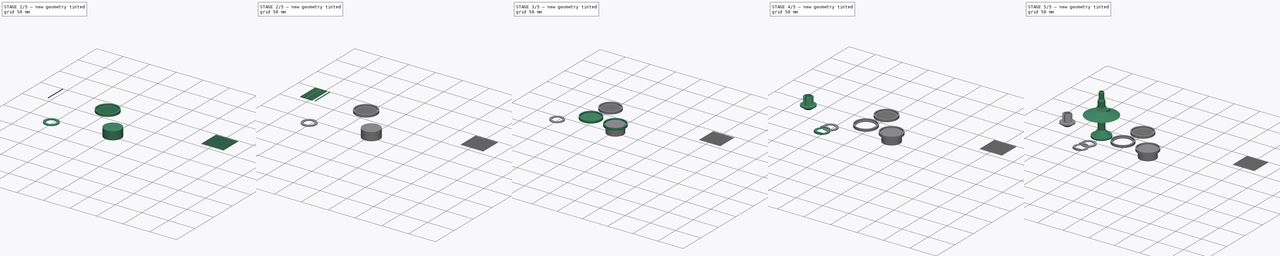
[diagram: build sequence overview — one tinted view per stage of 5, left to right]
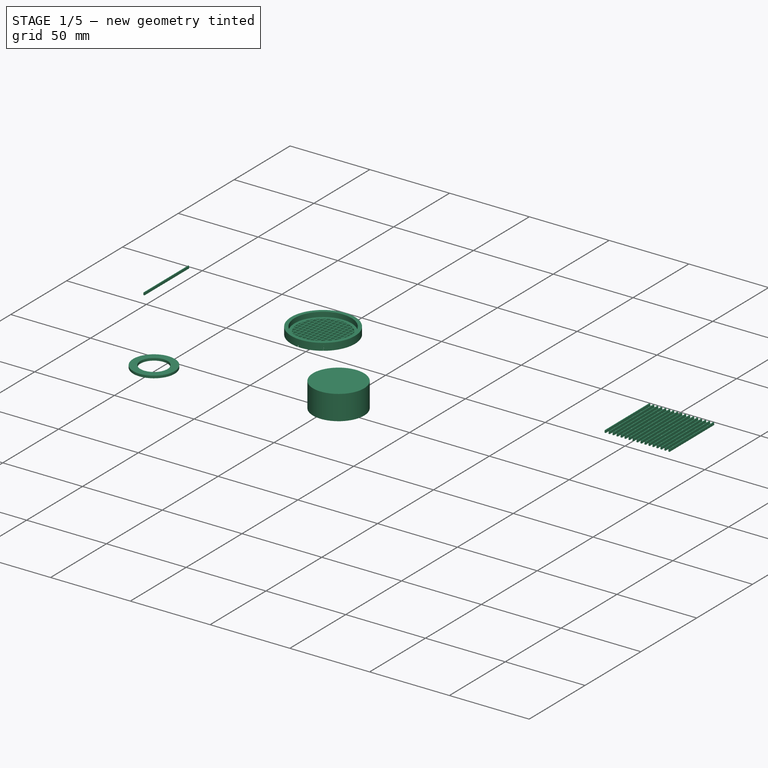
[diagram: stage 1 of 5 — iso view after this stage's code; geometry added in this stage tinted green]
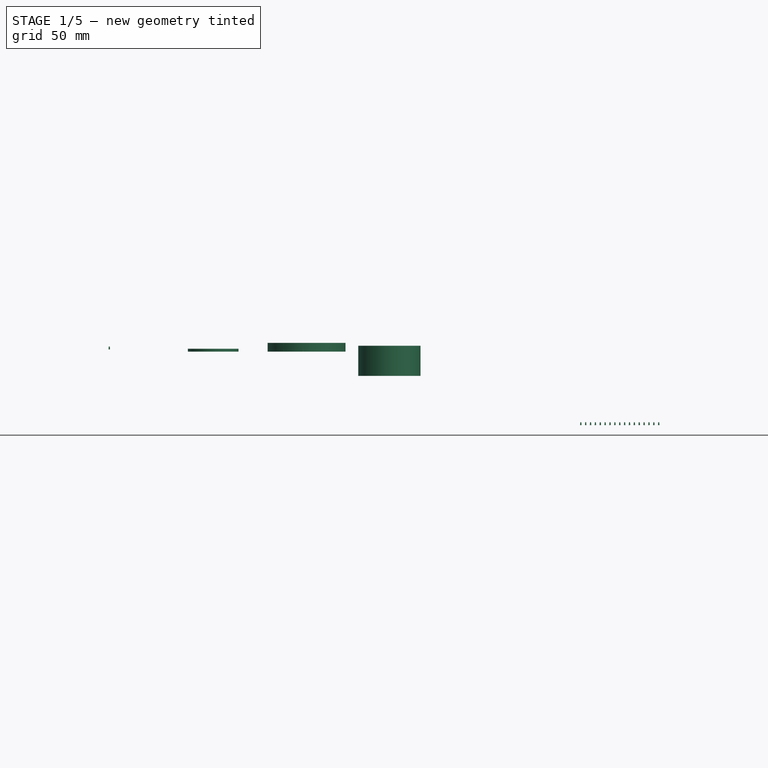
[diagram: stage 1 of 5 — front view after this stage's code; geometry added in this stage tinted green]
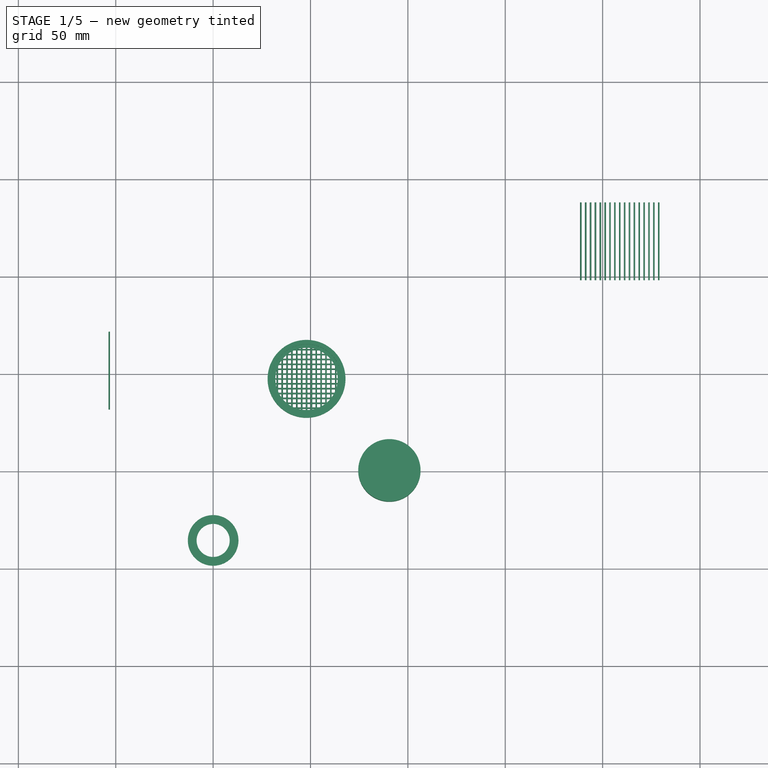
[diagram: stage 1 of 5 — top view after this stage's code; geometry added in this stage tinted green]
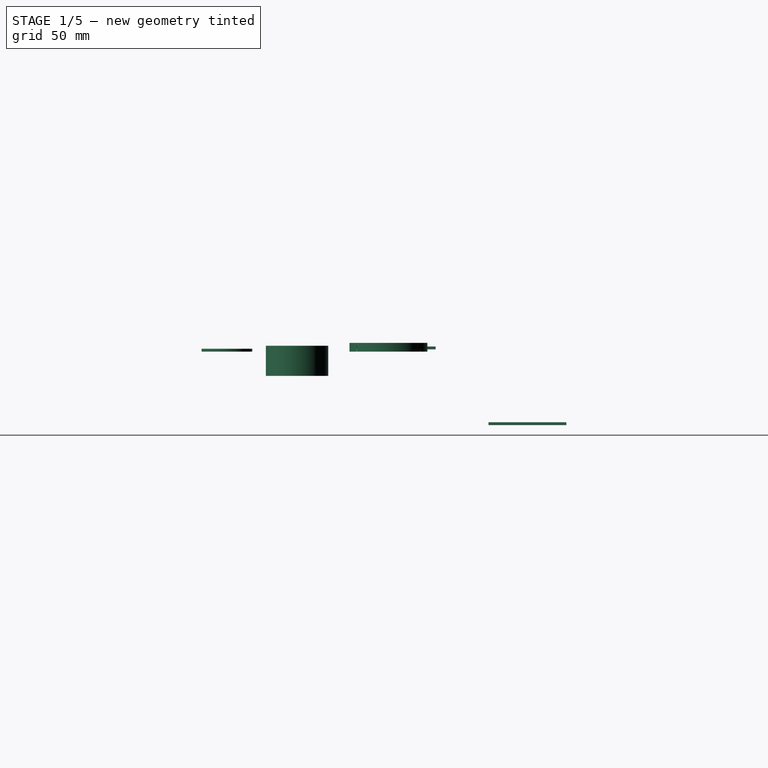
[diagram: stage 1 of 5 — right view after this stage's code; geometry added in this stage tinted green]
FCSTD DOCUMENT  (FreeCAD 0.18.4R)
Label: overflow-8.6_9.2
License: All rights reserved
LicenseURL: http://en.wikipedia.org/wiki/All_rights_reserved
objects: Part::Extrusion×45, Part::Part2DObjectPython×39, Part::Feature×17, Part::Cut×14, Part::MultiFuse×11, Part::Cone×3, Part::FeaturePython×3, Sketcher::SketchObject×2, Part::MultiCommon×2, Part::Helix×1, Part::Box×1, PartDesign::Pad×1, PartDesign::ShapeBinder×1, PartDesign::SubtractivePipe×1, PartDesign::Body×1, Part::Mirroring×1, Part::Cylinder×1, Part::Revolution×1
note: 147 computed .brp shape members not serialized (recipe doc carries the construction recipe); baked Part::Feature solids carry a one-line shape summary decoded from their .brp

FEATURE [Part::Extrusion] Extrusion090
  Base = -> Wire004
  Dir = (-1.881e-13,40,-6.22e-14)
  DirMode = 0
  FaceMakerClass = Part::FaceMakerBullseye
  LengthFwd = 0
  LengthRev = 0
  Placement = pos=(-13.9657,23.1669,27.0763) rot=(0,0,1;0rad)
  Solid = true
  Symmetric = false
FEATURE [Part::Feature] Face002
  Placement = pos=(3,18,0) rot=(0,0,1;0rad)
  shape: bbox 26 x 26 x 2e-07 mm, 1 faces, 0 solids (baked)
FEATURE [Part::Extrusion] Extrusion091
  Base = -> Face002
  Dir = (0,0,-1)
  DirMode = 0
  FaceMakerClass = Part::FaceMakerBullseye
  LengthFwd = 0
  LengthRev = 0
  Solid = true
  Symmetric = false
FEATURE [Part::Feature] Face003
  Placement = pos=(3,18,0) rot=(0,0,1;0rad)
  shape: bbox 26 x 26 x 2e-07 mm, 1 faces, 0 solids (baked)
FEATURE [Part::Feature] Face004
  Placement = pos=(3,18,0) rot=(0,0,1;0rad)
  shape: bbox 26 x 26 x 2e-07 mm, 1 faces, 0 solids (baked)
FEATURE [Part::Extrusion] Extrusion092
  Base = -> Face004
  Dir = (0,0,0.5)
  DirMode = 0
  FaceMakerClass = Part::FaceMakerBullseye
  LengthFwd = 0
  LengthRev = 0
  Solid = true
  Symmetric = false
FEATURE [Part::MultiFuse] Fusion010013002001002004002
  Shapes = -> [Extrusion091,Extrusion092]
FEATURE [Part::Feature] Fusion010013002001002004002001  label="Fusion010013002001002004003"
  shape: bbox 26 x 26 x 1.5 mm, 4 faces (baked)
FEATURE [Part::Feature] Fusion010013002001002004001  label="Fusion010013002001002005"
  shape: bbox 40 x 40 x 4.5 mm, 97 faces (baked)
FEATURE [Part::Part2DObjectPython] Circle009  # Draft 2D object (typed FeaturePython)
  FirstAngle = 0
  LastAngle = 0
  MakeFace = true
  Placement = pos=(90.4955,-1.09e-14,-34.7308) rot=(0,0,1;0rad)
  Radius = 16
  Support = -> [Fusion010013002001002004001]
FEATURE [Part::Extrusion] Extrusion093
  Base = -> Circle009
  Dir = (0,0,-15.4511)
  DirMode = 0
  FaceMakerClass = Part::FaceMakerBullseye
  LengthFwd = 0
  LengthRev = 0
  Solid = true
  Symmetric = false
FEATURE [Part::Part2DObjectPython] Wire005  # Draft 2D object (typed FeaturePython)
  ChamferSize = 0
  Closed = true
  End = (90.8955,15.995,-37.7308)
  FilletRadius = 0
  Length = 4.31497
  MakeFace = true
  Placement = pos=(90.7455,15.998,-36.2308) rot=(0.57735,0.57735,0.57735;2.0944rad)
  Points = (4) [(0,0,0),(-1.77636e-14,0,-0.5),(-0.00304754,-1.5,-0.65),(-0.00304754,-1.5,0.15)]
  Start = (90.7455,15.998,-36.2308)
  Subdivisions = 0
FEATURE [Part::Part2DObjectPython] Line012  # Draft 2D object (typed FeaturePython)
  ChamferSize = 0
  Closed = false
  End = (89.2955,15.995,-37.7308)
  FilletRadius = 0
  Length = 0.8
  MakeFace = true
  Placement = pos=(90.0955,15.995,-37.7308) rot=(1,0,0;3.14159rad)
  Points = (2) [(0,0,0),(-0.8,0,0)]
  Start = (90.0955,15.995,-37.7308)
  Subdivisions = 0
FEATURE [Part::Part2DObjectPython] Line013  # Draft 2D object (typed FeaturePython)
  ChamferSize = 0
  Closed = false
  End = (90.8955,15.995,-37.7308)
  FilletRadius = 0
  Length = 0.8
  MakeFace = true
  Placement = pos=(90.0955,15.995,-37.7308) rot=(1,0,0;3.14159rad)
  Points = (2) [(0,0,0),(0.8,0,0)]
  Start = (90.0955,15.995,-37.7308)
  Subdivisions = 0
FEATURE [Part::Part2DObjectPython] Line014  # Draft 2D object (typed FeaturePython)
  ChamferSize = 0
  Closed = false
  End = (90.4955,15.995,-36.2308)
  FilletRadius = 0
  Length = 1.5
  MakeFace = true
  Placement = pos=(90.4955,15.995,-37.7308) rot=(0,0.707107,-0.707107;3.14159rad)
  Points = (2) [(0,0,0),(0,-1.5,0)]
  Start = (90.4955,15.995,-37.7308)
  Subdivisions = 0
FEATURE [Part::Part2DObjectPython] Line015  # Draft 2D object (typed FeaturePython)
  ChamferSize = 0
  Closed = false
  End = (90.7455,15.995,-36.2308)
  FilletRadius = 0
  Length = 0.5
  MakeFace = true
  Placement = pos=(90.2455,15.995,-36.2308) rot=(0,0.707107,-0.707107;3.14159rad)
  Points = (2) [(0,0,0),(-0.5,-2.84217e-14,-1.77636e-15)]
  Start = (90.2455,15.995,-36.2308)
  Subdivisions = 0
FEATURE [Part::Part2DObjectPython] Wire006  # Draft 2D object (typed FeaturePython)
  ChamferSize = 0
  Closed = true
  End = (90.7455,15.995,-36.2308)
  FilletRadius = 0
  Length = 4.31496
  MakeFace = true
  Placement = pos=(90.2455,15.995,-36.2308) rot=(0,0.707107,-0.707107;3.14159rad)
  Points = (4) [(0,0,0),(0.15,1.5,-1.77636e-15),(-0.65,1.5,1.77636e-15),(-0.5,-4.26326e-14,-1.77636e-15)]
  Start = (90.2455,15.995,-36.2308)
  Subdivisions = 0
FEATURE [Part::Extrusion] Extrusion094
  Base = -> Wire006
  Dir = (-5.56e-14,40,-1.48e-14)
  DirMode = 0
  FaceMakerClass = Part::FaceMakerBullseye
  LengthFwd = 0
  LengthRev = 0
  Placement = pos=(47.4024,26.2758,-4.26e-14) rot=(0,0,1;0rad)
  Solid = true
  Symmetric = false
FEATURE [Part::Feature] Fusion010013002001002004002003002001  label="Fusion010013002001002004002003003"
  Placement = pos=(-110.612,46.9289,-6.39e-14) rot=(0,0,1;0rad)
  shape: bbox 40.15 x 40.15 x 4.646 mm, 1489 faces (baked)
FEATURE [Part::Part2DObjectPython] Circle010  # Draft 2D object (typed FeaturePython)
  FirstAngle = 0
  LastAngle = 0
  MakeFace = true
  Placement = pos=(47.9585,46.9289,-36.2308) rot=(0,0,1;0rad)
  Radius = 16
  Support = -> [Fusion010013002001002004002003002001]
FEATURE [Part::Extrusion] Extrusion095
  Base = -> Circle010
  Dir = (0,0,-90.6299)
  DirMode = 0
  FaceMakerClass = Part::FaceMakerBullseye
  LengthFwd = 0
  LengthRev = 0
  Solid = true
  Symmetric = false
FEATURE [Part::Cut] Cut001004012004
  Base = -> Fusion010013002001002004002003002001
  Tool = -> Extrusion095
FEATURE [Part::Feature] Cut001004012004001  label="Cut001004012005"
  shape: bbox 40.15 x 40.15 x 4.646 mm, 6 faces (baked)
FEATURE [Part::Part2DObjectPython] Line016  # Draft 2D object (typed FeaturePython)
  ChamferSize = 0
  Closed = false
  End = (98.2979,82.2708,-37.7308)
  FilletRadius = 0
  Length = 40
  MakeFace = true
  Placement = pos=(138.298,82.2708,-37.7308) rot=(0.707107,0.707107,0;3.14159rad)
  Points = (2) [(0,0,0),(2.84217e-14,-40,4.9738e-14)]
  Start = (138.298,82.2708,-37.7308)
  Subdivisions = 0
FEATURE [Part::FeaturePython] PathArray  # WARN: FeaturePython — macro-defined, semantics opaque (R4)
  Align = false
  Base = -> Extrusion094
  Count = 17
  PathObj = -> Line016
  PathSubs = -> [Line016]
  Xlate = (0,0,0)
FEATURE [Part::Part2DObjectPython] Line017  # Draft 2D object (typed FeaturePython)
  ChamferSize = 0
  Closed = false
  End = (229.193,138.266,-75.4615)
  FilletRadius = 0
  Length = 57.137
  MakeFace = true
  Placement = pos=(188.393,98.2658,-75.4615) rot=(0.707107,0.707107,0;3.14159rad)
  Points = (2) [(0,0,0),(40,40.8,3.12639e-13)]
  Start = (188.393,98.2658,-75.4615)
  Subdivisions = 0
FEATURE [Part::Part2DObjectPython] Line018  # Draft 2D object (typed FeaturePython)
  ChamferSize = 0
  Closed = false
  End = (188.393,138.266,-75.4615)
  FilletRadius = 0
  Length = 57.137
  MakeFace = true
  Placement = pos=(229.193,98.2658,-75.4615) rot=(0.707107,0.707107,0;3.14159rad)
  Points = (2) [(0,0,0),(40,-40.8,1.42109e-13)]
  Start = (229.193,98.2658,-75.4615)
  Subdivisions = 0
FEATURE [Part::Part2DObjectPython] Wire007  # Draft 2D object (typed FeaturePython)
  ChamferSize = 0
  Closed = true
  End = (90.7455,15.995,-36.2308)
  FilletRadius = 0
  Length = 4.31496
  MakeFace = true
  Placement = pos=(90.2455,15.995,-36.2308) rot=(0,0.707107,-0.707107;3.14159rad)
  Points = (4) [(0,0,0),(0.15,1.5,-1.77636e-15),(-0.65,1.5,1.77636e-15),(-0.5,-4.9738e-14,-1.77636e-15)]
  Start = (90.2455,15.995,-36.2308)
  Subdivisions = 0
FEATURE [Part::Extrusion] Extrusion096
  Base = -> Wire007
  Dir = (-5.56e-14,40,-1.48e-14)
  DirMode = 0
  FaceMakerClass = Part::FaceMakerBullseye
  LengthFwd = 0
  LengthRev = 0
  Placement = pos=(47.4024,26.2758,-4.3e-14) rot=(0,0,1;0rad)
  Solid = true
  Symmetric = false
FEATURE [Part::Part2DObjectPython] Line019  # Draft 2D object (typed FeaturePython)
  ChamferSize = 0
  Closed = false
  End = (98.2979,82.2708,-37.7308)
  FilletRadius = 0
  Length = 40
  MakeFace = true
  Placement = pos=(138.298,82.2708,-37.7308) rot=(0.707107,0.707107,0;3.14159rad)
  Points = (2) [(0,0,0),(2.84217e-14,-40,4.9738e-14)]
  Start = (138.298,82.2708,-37.7308)
  Subdivisions = 0
FEATURE [Part::FeaturePython] PathArray001  # WARN: FeaturePython — macro-defined, semantics opaque (R4)
  Align = false
  Base = -> Extrusion096
  Count = 17
  PathObj = -> Line019
  PathSubs = -> [Line019]
  Xlate = (0,0,0)
FEATURE [Part::Part2DObjectPython] Wire008  # Draft 2D object (typed FeaturePython)
  ChamferSize = 0
  Closed = true
  End = (90.7455,15.995,-36.2308)
  FilletRadius = 0
  Length = 4.31496
  MakeFace = true
  Placement = pos=(90.2455,15.995,-36.2308) rot=(0,0.707107,-0.707107;3.14159rad)
  Points = (4) [(0,0,0),(0.15,1.5,-1.77636e-15),(-0.65,1.5,1.77636e-15),(-0.5,-4.9738e-14,-1.77636e-15)]
  Start = (90.2455,15.995,-36.2308)
  Subdivisions = 0
FEATURE [Part::Extrusion] Extrusion097
  Base = -> Wire008
  Dir = (-5.56e-14,40,-1.48e-14)
  DirMode = 0
  FaceMakerClass = Part::FaceMakerBullseye
  LengthFwd = 0
  LengthRev = 0
  Placement = pos=(47.4024,26.2758,-4.3e-14) rot=(0,0,1;0rad)
  Solid = true
  Symmetric = false
FEATURE [Part::Part2DObjectPython] Line020  # Draft 2D object (typed FeaturePython)
  ChamferSize = 0
  Closed = false
  End = (98.2979,82.2708,-37.7308)
  FilletRadius = 0
  Length = 40
  MakeFace = true
  Placement = pos=(138.298,82.2708,-37.7308) rot=(0.707107,0.707107,0;3.14159rad)
  Points = (2) [(0,0,0),(2.84217e-14,-40,4.9738e-14)]
  Start = (138.298,82.2708,-37.7308)
  Subdivisions = 0
FEATURE [Part::FeaturePython] PathArray002  # WARN: FeaturePython — macro-defined, semantics opaque (R4)
  Align = false
  Base = -> Extrusion097
  Count = 17
  PathObj = -> Line020
  PathSubs = -> [Line020]
  Placement = pos=(327.059,-90.5276,1.7053e-12) rot=(0,0,1;1.5708rad)
  Xlate = (0,0,0)
FEATURE [Part::MultiFuse] Fusion010013002001002004002003002002
  Placement = pos=(-160.835,-71.3369,37.7308) rot=(0,0,1;0rad)
  Shapes = -> [PathArray,PathArray002]
FEATURE [Part::Part2DObjectPython] Circle011  # Draft 2D object (typed FeaturePython)
  FirstAngle = 0
  LastAngle = 0
  MakeFace = true
  Placement = pos=(47.9585,46.9289,-37.7308) rot=(0.707107,0.707107,0;3.14159rad)
  Radius = 20
  Support = -> [Cut001004012004001]
FEATURE [Part::Extrusion] Extrusion098
  Base = -> Circle011
  Dir = (-5.221e-13,-2.85e-13,46.4018)
  DirMode = 0
  FaceMakerClass = Part::FaceMakerBullseye
  LengthFwd = 0
  LengthRev = 0
  Solid = true
  Symmetric = false
FEATURE [Part::MultiCommon] Common001
  Shapes = -> [Extrusion098,Fusion010013002001002004002003002002]
FEATURE [Part::MultiFuse] Fusion010013002001002004002003002003
  Shapes = -> [Cut001004012004001,Common001]
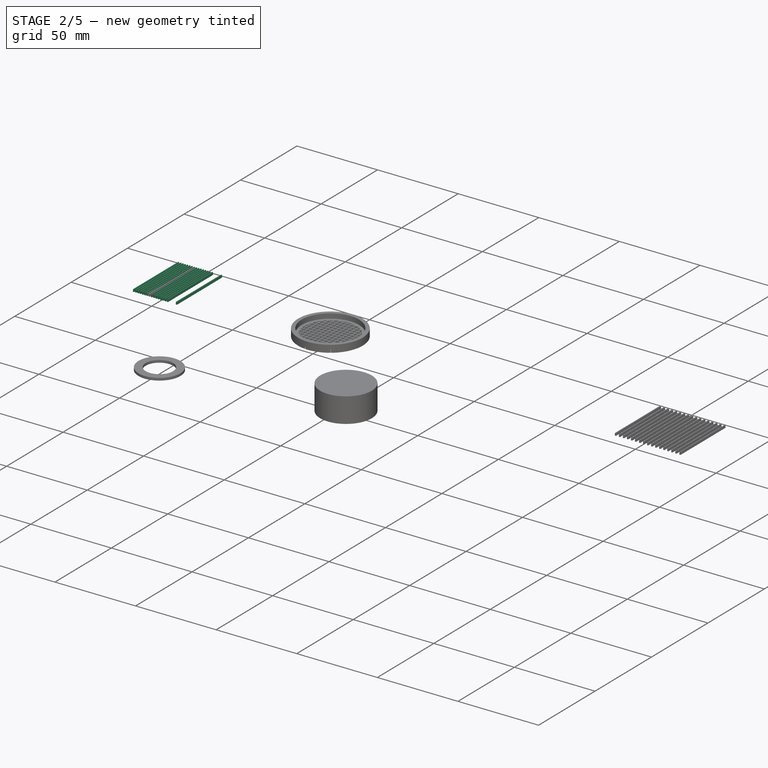
[diagram: stage 2 of 5 — iso view after this stage's code; geometry added in this stage tinted green]
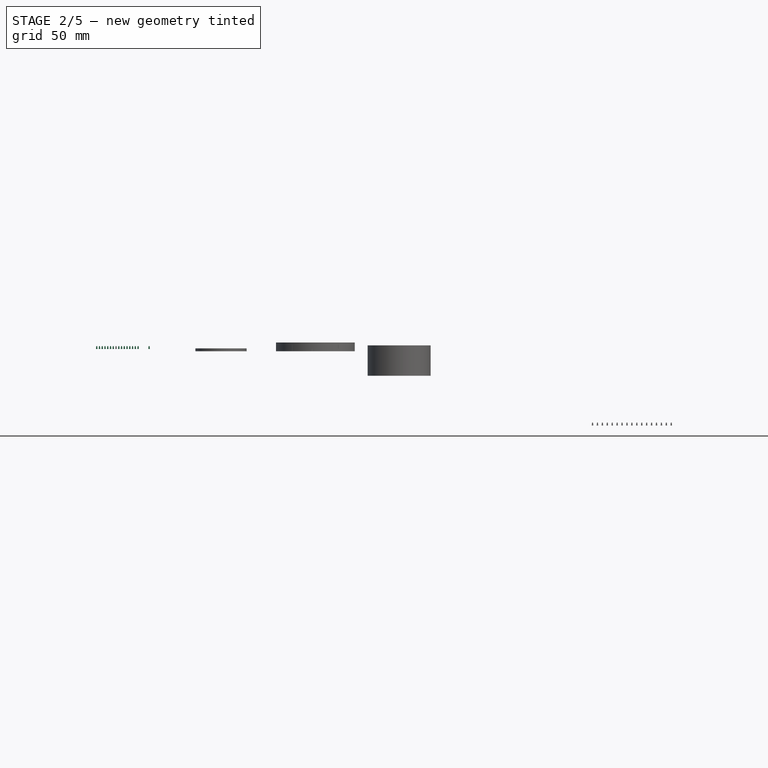
[diagram: stage 2 of 5 — front view after this stage's code; geometry added in this stage tinted green]
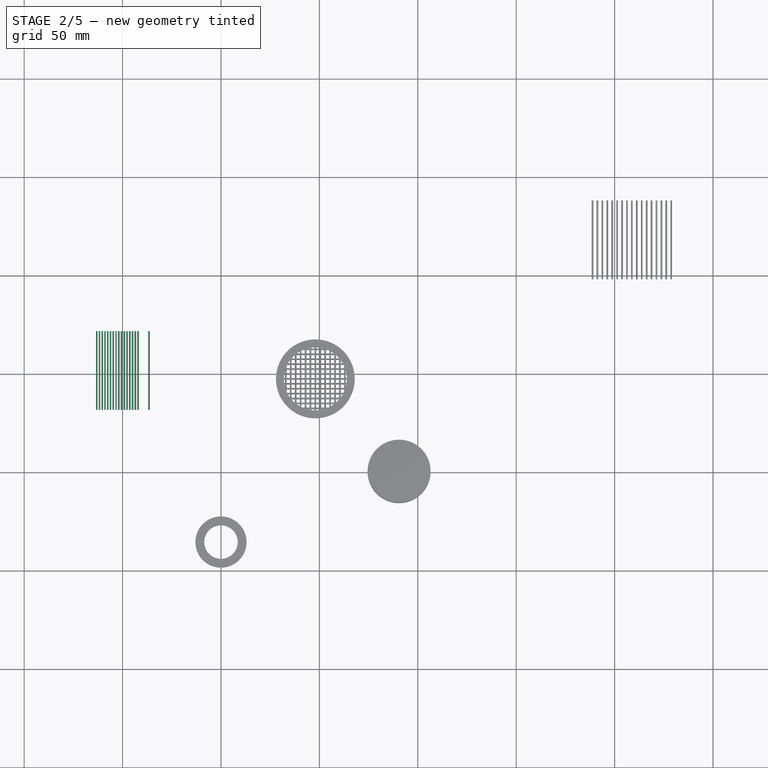
[diagram: stage 2 of 5 — top view after this stage's code; geometry added in this stage tinted green]
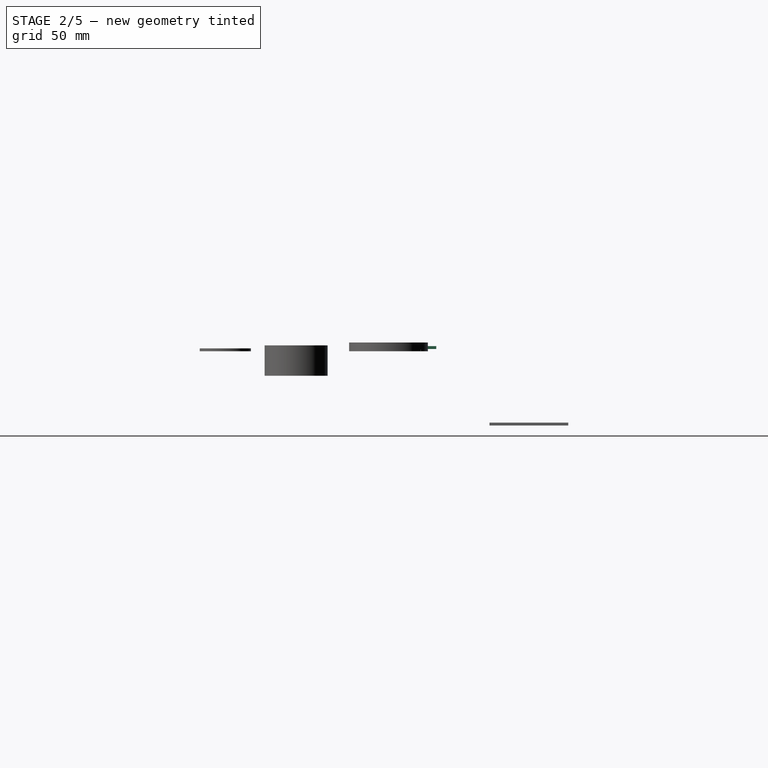
[diagram: stage 2 of 5 — right view after this stage's code; geometry added in this stage tinted green]
FEATURE [Part::Extrusion] Extrusion074
  Base = -> Wire004
  Dir = (-1.881e-13,40,-6.22e-14)
  DirMode = 0
  FaceMakerClass = Part::FaceMakerBullseye
  LengthFwd = 0
  LengthRev = 0
  Placement = pos=(2.83429,23.1669,27.0763) rot=(0,0,1;0rad)
  Solid = true
  Symmetric = false
FEATURE [Part::Extrusion] Extrusion075
  Base = -> Wire004
  Dir = (-1.881e-13,40,-6.22e-14)
  DirMode = 0
  FaceMakerClass = Part::FaceMakerBullseye
  LengthFwd = 0
  LengthRev = 0
  Placement = pos=(-12.5657,23.1669,27.0763) rot=(0,0,1;0rad)
  Solid = true
  Symmetric = false
FEATURE [Part::Extrusion] Extrusion076
  Base = -> Wire004
  Dir = (-1.881e-13,40,-6.22e-14)
  DirMode = 0
  FaceMakerClass = Part::FaceMakerBullseye
  LengthFwd = 0
  LengthRev = 0
  Placement = pos=(-11.1657,23.1669,27.0763) rot=(0,0,1;0rad)
  Solid = true
  Symmetric = false
FEATURE [Part::Extrusion] Extrusion077
  Base = -> Wire004
  Dir = (-1.881e-13,40,-6.22e-14)
  DirMode = 0
  FaceMakerClass = Part::FaceMakerBullseye
  LengthFwd = 0
  LengthRev = 0
  Placement = pos=(-9.76571,23.1669,27.0763) rot=(0,0,1;0rad)
  Solid = true
  Symmetric = false
FEATURE [Part::Extrusion] Extrusion078
  Base = -> Wire004
  Dir = (-1.881e-13,40,-6.22e-14)
  DirMode = 0
  FaceMakerClass = Part::FaceMakerBullseye
  LengthFwd = 0
  LengthRev = 0
  Placement = pos=(-8.36571,23.1669,27.0763) rot=(0,0,1;0rad)
  Solid = true
  Symmetric = false
FEATURE [Part::Extrusion] Extrusion079
  Base = -> Wire004
  Dir = (-1.881e-13,40,-6.22e-14)
  DirMode = 0
  FaceMakerClass = Part::FaceMakerBullseye
  LengthFwd = 0
  LengthRev = 0
  Placement = pos=(-6.96571,23.1669,27.0763) rot=(0,0,1;0rad)
  Solid = true
  Symmetric = false
FEATURE [Part::Extrusion] Extrusion080
  Base = -> Wire004
  Dir = (-1.881e-13,40,-6.22e-14)
  DirMode = 0
  FaceMakerClass = Part::FaceMakerBullseye
  LengthFwd = 0
  LengthRev = 0
  Placement = pos=(-5.56571,23.1669,27.0763) rot=(0,0,1;0rad)
  Solid = true
  Symmetric = false
FEATURE [Part::Extrusion] Extrusion081
  Base = -> Wire004
  Dir = (-1.881e-13,40,-6.22e-14)
  DirMode = 0
  FaceMakerClass = Part::FaceMakerBullseye
  LengthFwd = 0
  LengthRev = 0
  Placement = pos=(-4.16571,23.1669,27.0763) rot=(0,0,1;0rad)
  Solid = true
  Symmetric = false
FEATURE [Part::Extrusion] Extrusion082
  Base = -> Wire004
  Dir = (-1.881e-13,40,-6.22e-14)
  DirMode = 0
  FaceMakerClass = Part::FaceMakerBullseye
  LengthFwd = 0
  LengthRev = 0
  Placement = pos=(-2.76571,23.1669,27.0763) rot=(0,0,1;0rad)
  Solid = true
  Symmetric = false
FEATURE [Part::Extrusion] Extrusion083
  Base = -> Wire004
  Dir = (-1.881e-13,40,-6.22e-14)
  DirMode = 0
  FaceMakerClass = Part::FaceMakerBullseye
  LengthFwd = 0
  LengthRev = 0
  Placement = pos=(-23.7657,23.1669,27.0763) rot=(0,0,1;0rad)
  Solid = true
  Symmetric = false
FEATURE [Part::Extrusion] Extrusion084
  Base = -> Wire004
  Dir = (-1.881e-13,40,-6.22e-14)
  DirMode = 0
  FaceMakerClass = Part::FaceMakerBullseye
  LengthFwd = 0
  LengthRev = 0
  Placement = pos=(-22.3657,23.1669,27.0763) rot=(0,0,1;0rad)
  Solid = true
  Symmetric = false
FEATURE [Part::Extrusion] Extrusion085
  Base = -> Wire004
  Dir = (-1.881e-13,40,-6.22e-14)
  DirMode = 0
  FaceMakerClass = Part::FaceMakerBullseye
  LengthFwd = 0
  LengthRev = 0
  Placement = pos=(-20.9657,23.1669,27.0763) rot=(0,0,1;0rad)
  Solid = true
  Symmetric = false
FEATURE [Part::Extrusion] Extrusion086
  Base = -> Wire004
  Dir = (-1.881e-13,40,-6.22e-14)
  DirMode = 0
  FaceMakerClass = Part::FaceMakerBullseye
  LengthFwd = 0
  LengthRev = 0
  Placement = pos=(-19.5657,23.1669,27.0763) rot=(0,0,1;0rad)
  Solid = true
  Symmetric = false
FEATURE [Part::Extrusion] Extrusion087
  Base = -> Wire004
  Dir = (-1.881e-13,40,-6.22e-14)
  DirMode = 0
  FaceMakerClass = Part::FaceMakerBullseye
  LengthFwd = 0
  LengthRev = 0
  Placement = pos=(-18.1657,23.1669,27.0763) rot=(0,0,1;0rad)
  Solid = true
  Symmetric = false
FEATURE [Part::Extrusion] Extrusion088
  Base = -> Wire004
  Dir = (-1.881e-13,40,-6.22e-14)
  DirMode = 0
  FaceMakerClass = Part::FaceMakerBullseye
  LengthFwd = 0
  LengthRev = 0
  Placement = pos=(-16.7657,23.1669,27.0763) rot=(0,0,1;0rad)
  Solid = true
  Symmetric = false
FEATURE [Part::Extrusion] Extrusion089
  Base = -> Wire004
  Dir = (-1.881e-13,40,-6.22e-14)
  DirMode = 0
  FaceMakerClass = Part::FaceMakerBullseye
  LengthFwd = 0
  LengthRev = 0
  Placement = pos=(-15.3657,23.1669,27.0763) rot=(0,0,1;0rad)
  Solid = true
  Symmetric = false
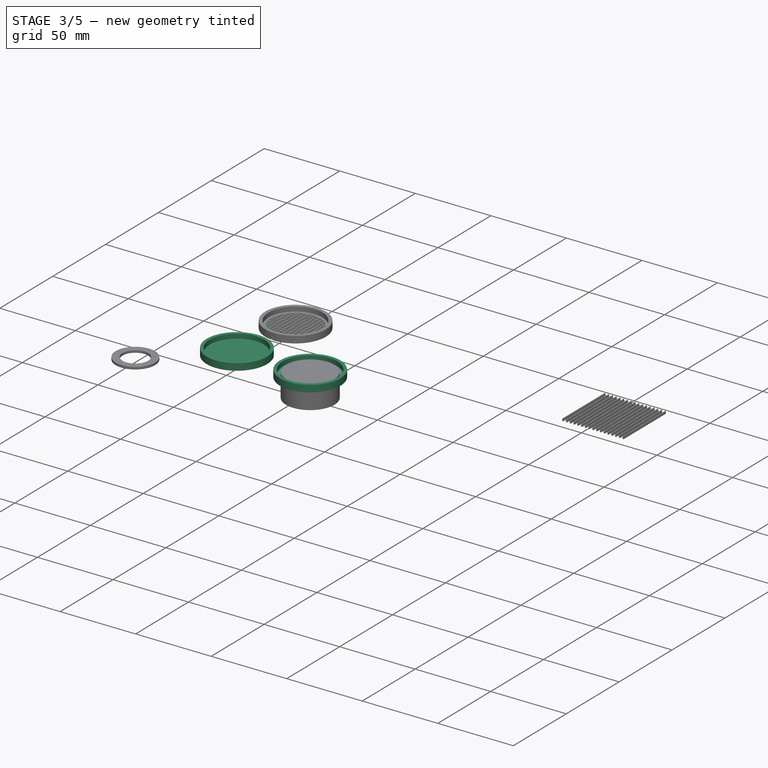
[diagram: stage 3 of 5 — iso view after this stage's code; geometry added in this stage tinted green]
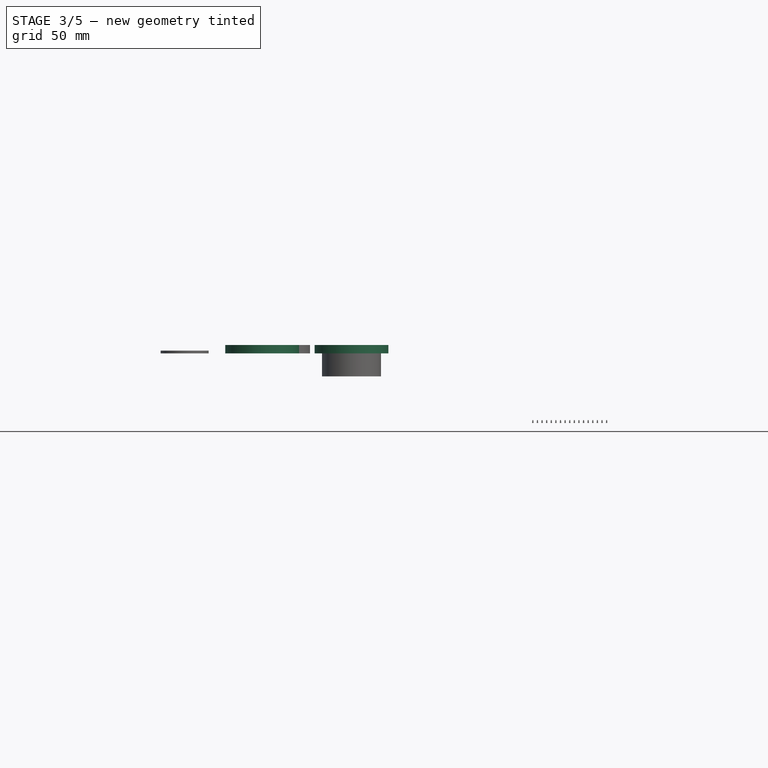
[diagram: stage 3 of 5 — front view after this stage's code; geometry added in this stage tinted green]
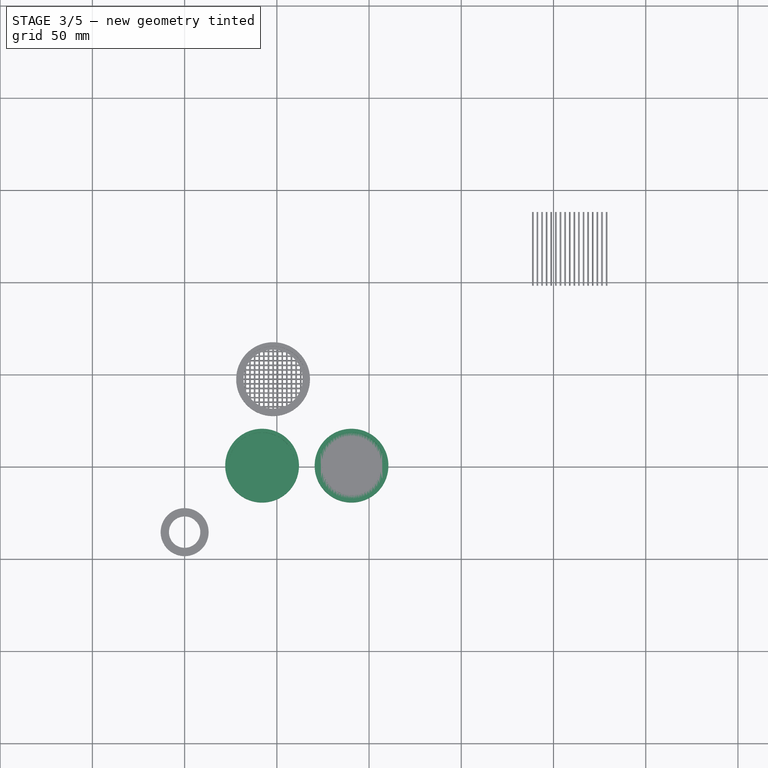
[diagram: stage 3 of 5 — top view after this stage's code; geometry added in this stage tinted green]
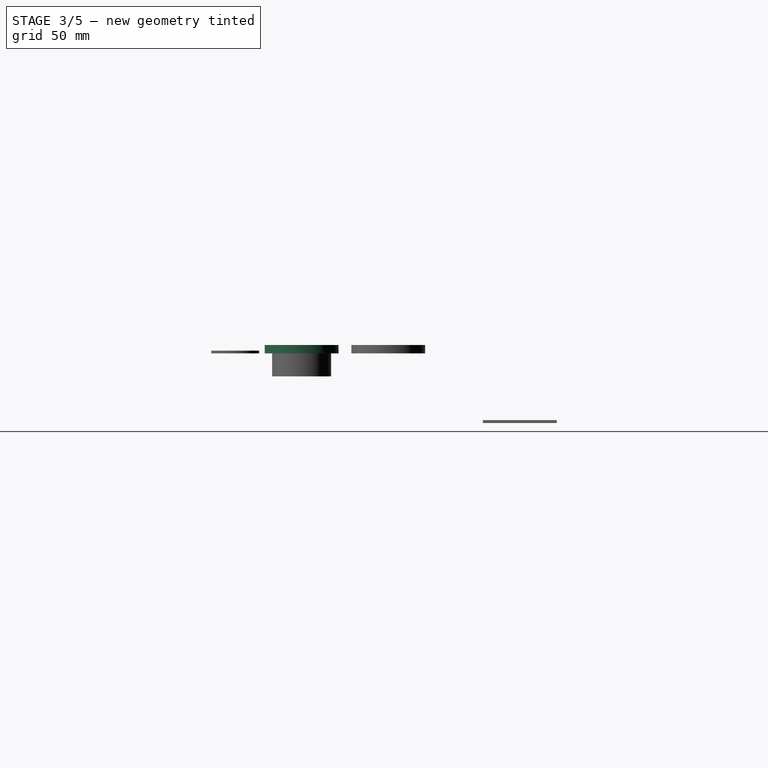
[diagram: stage 3 of 5 — right view after this stage's code; geometry added in this stage tinted green]
FEATURE [Part::Feature] Cut001004012001  label="Cut001004013"
  Placement = pos=(3,50,0) rot=(0,0,1;0rad)
  shape: bbox 26 x 26 x 1 mm, 4 faces (baked)
FEATURE [Part::Feature] Fusion010013002001001  label="Fusion010013004"
  Placement = pos=(-33,53,0) rot=(0,0,1;0rad)
  shape: bbox 26 x 26 x 3 mm, 8 faces (baked)
FEATURE [Part::Part2DObjectPython] Circle004  # Draft 2D object (typed FeaturePython)
  FirstAngle = 0
  LastAngle = 0
  MakeFace = true
  Placement = pos=(-1.1e-14,-8e-15,-37.7308) rot=(1,0,0;3.14159rad)
  Radius = 18
  Support = -> [Fusion010013001]
FEATURE [Part::Part2DObjectPython] Circle005  # Draft 2D object (typed FeaturePython)
  FirstAngle = 0
  LastAngle = 0
  MakeFace = true
  Placement = pos=(-1.1e-14,-7e-15,-37.7308) rot=(1,0,0;3.14159rad)
  Radius = 20
  Support = -> [Circle004]
FEATURE [Part::Extrusion] Extrusion008
  Base = -> Circle004
  Dir = (0,0,3)
  DirMode = 0
  FaceMakerClass = Part::FaceMakerBullseye
  LengthFwd = 0
  LengthRev = 0
  Solid = true
  Symmetric = false
FEATURE [Part::Extrusion] Extrusion009
  Base = -> Circle005
  Dir = (0,0,3)
  DirMode = 0
  FaceMakerClass = Part::FaceMakerBullseye
  LengthFwd = 0
  LengthRev = 0
  Solid = true
  Symmetric = false
FEATURE [Part::Cut] Cut001004012002
  Base = -> Extrusion009
  Placement = pos=(42,0,0) rot=(0,0,1;0rad)
  Tool = -> Extrusion008
FEATURE [Part::Extrusion] Extrusion011
  Base = -> Circle007
  Dir = (0,0,1.5)
  DirMode = 0
  FaceMakerClass = Part::FaceMakerBullseye
  LengthFwd = 0
  LengthRev = 0
  Solid = true
  Symmetric = false
FEATURE [Part::Feature] Face001
  Placement = pos=(42,0,0) rot=(0,0,1;0rad)
  shape: bbox 40 x 40 x 2e-07 mm, 1 faces, 0 solids (baked)
FEATURE [Part::Extrusion] Extrusion012
  Base = -> Face001
  Dir = (0,0,1.5)
  DirMode = 0
  FaceMakerClass = Part::FaceMakerBullseye
  LengthFwd = 0
  LengthRev = 0
  Solid = true
  Symmetric = false
FEATURE [Part::Feature] Fusion010013002001002001  label="Fusion010013002001003"
  shape: bbox 40 x 40 x 4.5 mm, 6 faces (baked)
FEATURE [Part::Feature] Fusion010013002001002002  label="Fusion010013002001004"
  Placement = pos=(48.4955,-3e-15,0) rot=(0,0,1;0rad)
  shape: bbox 40 x 40 x 4.5 mm, 6 faces (baked)
FEATURE [Part::Part2DObjectPython] Circle008  # Draft 2D object (typed FeaturePython)
  FirstAngle = 0
  LastAngle = 0
  MakeFace = true
  Placement = pos=(-46.3305,51.1669,-36.5911) rot=(1,0,0;3.14159rad)
  Radius = 20
  Support = -> [Fusion010013002001002002]
FEATURE [Part::Extrusion] Extrusion044
  Base = -> Circle008
  Dir = (0,0,6.43794)
  DirMode = 0
  FaceMakerClass = Part::FaceMakerBullseye
  LengthFwd = 0
  LengthRev = 0
  Solid = true
  Symmetric = false
FEATURE [Part::Part2DObjectPython] Wire004  # Draft 2D object (typed FeaturePython)
  ChamferSize = 0
  Closed = true
  End = (-39.1148,8,-62.1673)
  FilletRadius = 0
  Length = 4.31496
  MakeFace = true
  Placement = pos=(-39.6148,8,-62.1673) rot=(0,0.707107,-0.707107;3.14159rad)
  Points = (4) [(0,0,0),(0.15,1.5,1.77636e-15),(-0.65,1.5,1.77636e-15),(-0.5,0,-1.77636e-15)]
  Start = (-39.6148,8,-62.1673)
  Subdivisions = 0
FEATURE [Part::Extrusion] Extrusion066
  Base = -> Wire004
  Dir = (-1.881e-13,40,-6.22e-14)
  DirMode = 0
  FaceMakerClass = Part::FaceMakerBullseye
  LengthFwd = 0
  LengthRev = 0
  Placement = pos=(9.83429,23.1669,27.0763) rot=(0,0,1;0rad)
  Solid = true
  Symmetric = false
FEATURE [Part::Extrusion] Extrusion067
  Base = -> Wire004
  Dir = (-1.881e-13,40,-6.22e-14)
  DirMode = 0
  FaceMakerClass = Part::FaceMakerBullseye
  LengthFwd = 0
  LengthRev = 0
  Placement = pos=(8.43429,23.1669,27.0763) rot=(0,0,1;0rad)
  Solid = true
  Symmetric = false
FEATURE [Part::Extrusion] Extrusion068
  Base = -> Wire004
  Dir = (-1.881e-13,40,-6.22e-14)
  DirMode = 0
  FaceMakerClass = Part::FaceMakerBullseye
  LengthFwd = 0
  LengthRev = 0
  Placement = pos=(7.03429,23.1669,27.0763) rot=(0,0,1;0rad)
  Solid = true
  Symmetric = false
FEATURE [Part::Extrusion] Extrusion069
  Base = -> Wire004
  Dir = (-1.881e-13,40,-6.22e-14)
  DirMode = 0
  FaceMakerClass = Part::FaceMakerBullseye
  LengthFwd = 0
  LengthRev = 0
  Placement = pos=(4.23429,23.1669,27.0763) rot=(0,0,1;0rad)
  Solid = true
  Symmetric = false
FEATURE [Part::Extrusion] Extrusion070
  Base = -> Wire004
  Dir = (-1.881e-13,40,-6.22e-14)
  DirMode = 0
  FaceMakerClass = Part::FaceMakerBullseye
  LengthFwd = 0
  LengthRev = 0
  Placement = pos=(5.63429,23.1669,27.0763) rot=(0,0,1;0rad)
  Solid = true
  Symmetric = false
FEATURE [Part::Extrusion] Extrusion071
  Base = -> Wire004
  Dir = (-1.881e-13,40,-6.22e-14)
  DirMode = 0
  FaceMakerClass = Part::FaceMakerBullseye
  LengthFwd = 0
  LengthRev = 0
  Placement = pos=(-1.36571,23.1669,27.0763) rot=(0,0,1;0rad)
  Solid = true
  Symmetric = false
FEATURE [Part::Extrusion] Extrusion072
  Base = -> Wire004
  Dir = (-1.881e-13,40,-6.22e-14)
  DirMode = 0
  FaceMakerClass = Part::FaceMakerBullseye
  LengthFwd = 0
  LengthRev = 0
  Placement = pos=(0.0342906,23.1669,27.0763) rot=(0,0,1;0rad)
  Solid = true
  Symmetric = false
FEATURE [Part::Extrusion] Extrusion073
  Base = -> Wire004
  Dir = (-1.881e-13,40,-6.22e-14)
  DirMode = 0
  FaceMakerClass = Part::FaceMakerBullseye
  LengthFwd = 0
  LengthRev = 0
  Placement = pos=(1.43429,23.1669,27.0763) rot=(0,0,1;0rad)
  Solid = true
  Symmetric = false
FEATURE [Part::MultiFuse] Fusion010013002001002003
  Shapes = -> [Extrusion066,Extrusion067,Extrusion068,Extrusion069,Extrusion070,Extrusion071,Extrusion072,Extrusion073,Extrusion074,Extrusion076,Extrusion075,Extrusion077,Extrusion078,Extrusion079,Extrusion080,Extrusion081,Extrusion082,Extrusion083,Extrusion084,Extrusion085,Extrusion086,Extrusion087,Extrusion088,Extrusion089,Extrusion090]
FEATURE [Part::MultiCommon] Common
  Placement = pos=(136.826,-51.1669,-1.13968) rot=(0,0,1;0rad)
  Shapes = -> [Fusion010013002001002003,Extrusion044]
FEATURE [Part::MultiFuse] Fusion010013002001002004
  Shapes = -> [Common,Fusion010013002001002002]
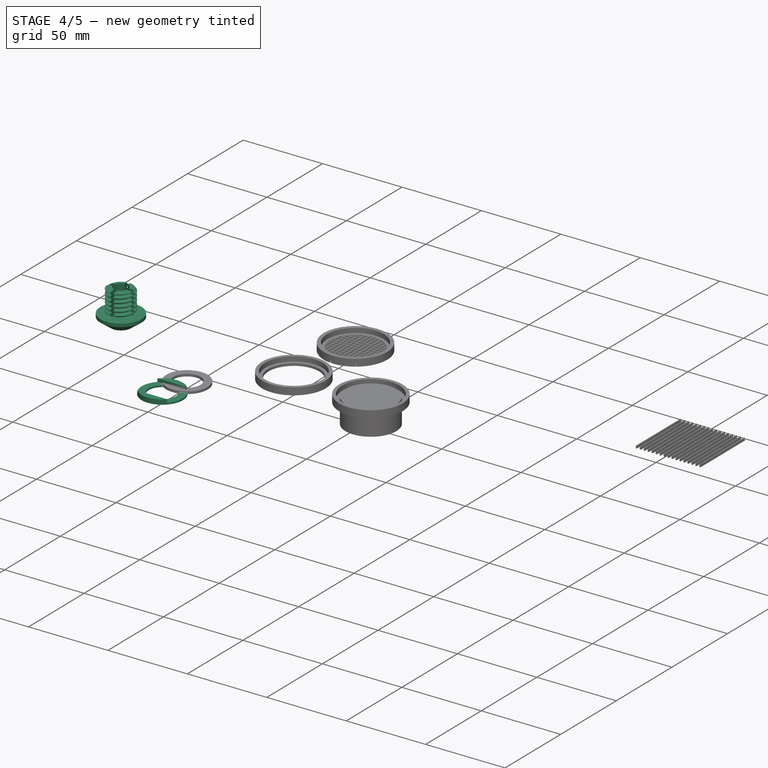
[diagram: stage 4 of 5 — iso view after this stage's code; geometry added in this stage tinted green]
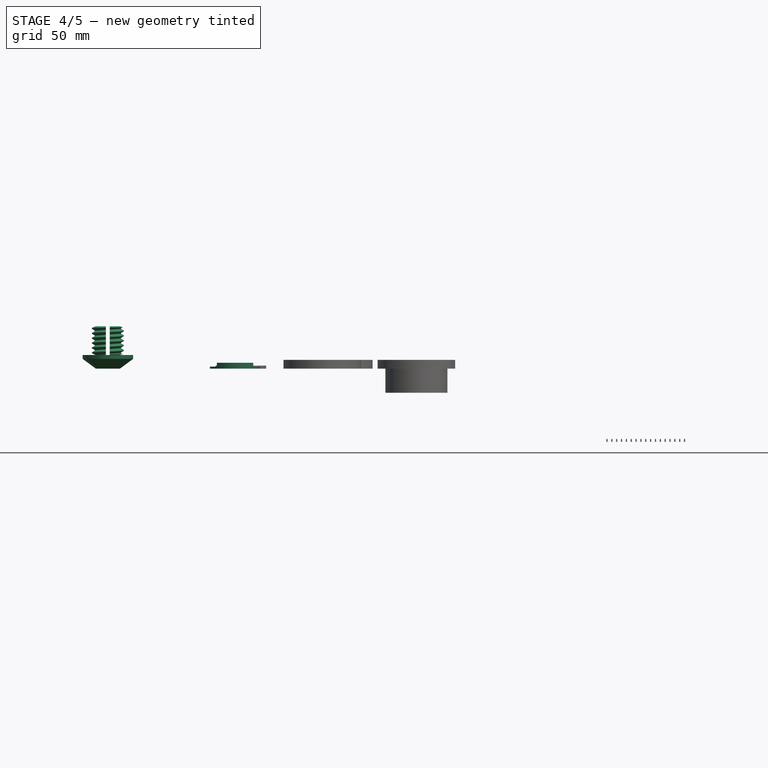
[diagram: stage 4 of 5 — front view after this stage's code; geometry added in this stage tinted green]
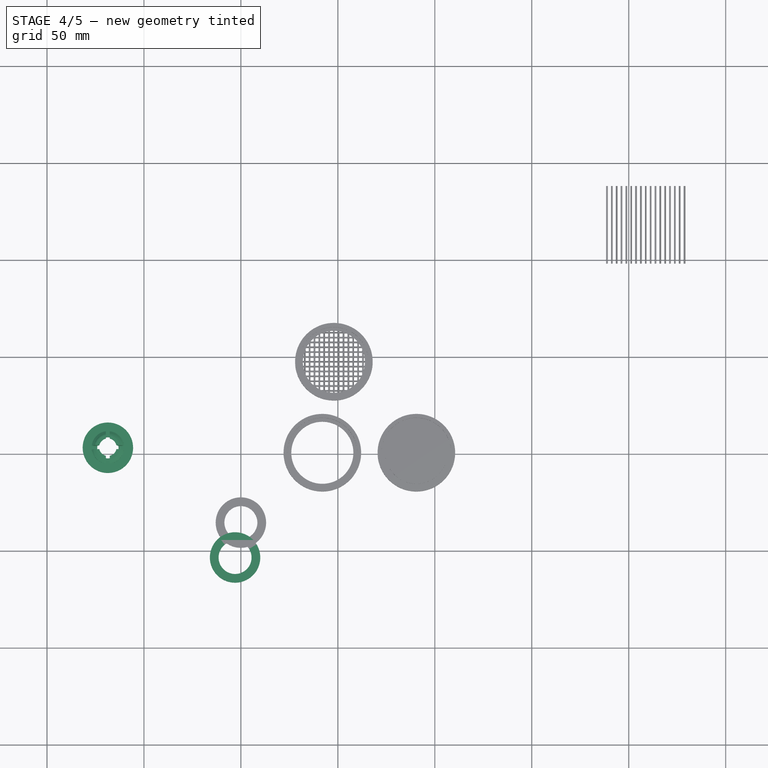
[diagram: stage 4 of 5 — top view after this stage's code; geometry added in this stage tinted green]
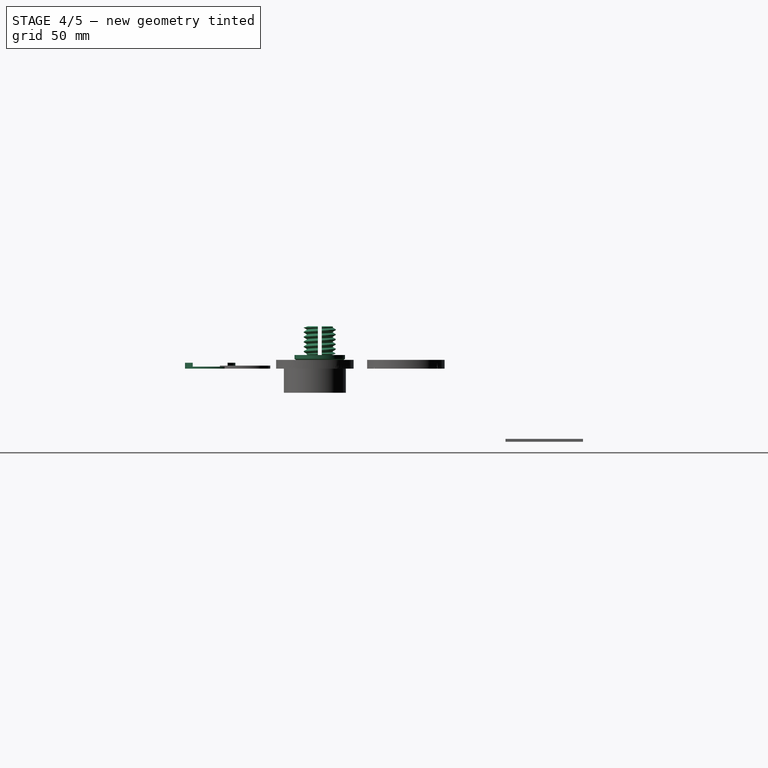
[diagram: stage 4 of 5 — right view after this stage's code; geometry added in this stage tinted green]
FEATURE [Part::Helix] Helix
  Angle = 0
  AttacherType = Attacher::AttachEngine3D
  Height = 20
  LocalCoord = 0
  Pitch = 2.5
  Placement = pos=(0,0,-2.5) rot=(0,0,1;0rad)
  Radius = 8.6
  Style = 1
FEATURE [Part::MultiFuse] Fusion010011
FEATURE [PartDesign::Body] Body  label="Cylinder: R=8,6"
  Group = -> [Sketch,Pad,Sketch001,SubtractivePipe,CopyHelix]
  Origin = -> Origin
  Tip = -> SubtractivePipe
FEATURE [Part::Feature] SubtractivePipe001
  shape: bbox 17.51 x 17.8 x 17.78 mm, 32 faces (baked)
FEATURE [Part::Part2DObjectPython] Rectangle001  # Draft 2D object (typed FeaturePython)
  ChamferSize = 0
  Columns = 1
  FilletRadius = 0
  Height = 25.4446
  Length = 32.8383
  MakeFace = true
  Placement = pos=(18.8383,0,21) rot=(0,0.707107,-0.707107;3.14159rad)
  Rows = 1
  Support = -> [Box]
FEATURE [Part::Part2DObjectPython] Line001  # Draft 2D object (typed FeaturePython)
  ChamferSize = 0
  Closed = false
  End = (0,0,15)
  FilletRadius = 0
  Length = 8.33
  MakeFace = true
  Placement = pos=(8.33,0,15) rot=(0,0.707107,-0.707107;3.14159rad)
  Points = (2) [(0,0,0),(8.33,0,0)]
  Start = (8.33,0,15)
  Subdivisions = 0
FEATURE [Part::Part2DObjectPython] Line002  # Draft 2D object (typed FeaturePython)
  ChamferSize = 0
  Closed = false
  End = (-17.263,0,11.0002)
  FilletRadius = 0
  Length = 18.2759
  MakeFace = true
  Placement = pos=(0,0,17) rot=(0,0.707107,-0.707107;3.14159rad)
  Points = (2) [(0,0,0),(17.263,5.99982,1.33223e-15)]
  Start = (0,0,17)
  Subdivisions = 0
FEATURE [Part::Part2DObjectPython] Line003  # Draft 2D object (typed FeaturePython)
  ChamferSize = 0
  Closed = false
  End = (0,0,17)
  FilletRadius = 0
  Length = 2
  MakeFace = true
  Placement = pos=(0,0,15) rot=(0.57735,-0.57735,0.57735;4.18879rad)
  Points = (2) [(0,0,0),(0,-2,0)]
  Start = (0,0,15)
  Subdivisions = 0
  Support = -> [Box]
FEATURE [Part::Mirroring] mirror  label="Mirror of Line002"
  Base = (0,0,15)
  Normal = (-0.979789,-0.200034,0)
  Source = -> Line002
FEATURE [Part::Part2DObjectPython] Line  # Draft 2D object (typed FeaturePython)
  ChamferSize = 0
  Closed = false
  End = (-17.263,0,11.0002)
  FilletRadius = 0
  Length = 33.8281
  MakeFace = true
  Placement = pos=(15.8815,6.76678,11.0002) rot=(0,0.707107,0.707107;3.14159rad)
  Points = (2) [(0,0,0),(33.1444,-1.77636e-15,-6.76678)]
  Start = (15.8815,6.76678,11.0002)
  Subdivisions = 0
FEATURE [Part::Cone] Cone001
  Angle = 360
  AttacherType = Attacher::AttachEngine3D
  Height = 10
  Radius1 = 30
  Radius2 = 0
FEATURE [Part::Cylinder] Cylinder
  Angle = 360
  AttacherType = Attacher::AttachEngine3D
  Height = 20
  Radius = 30
FEATURE [Part::Cut] Cut
  Base = -> Cylinder
  Placement = pos=(-2e-15,0,8) rot=(0,1,0;3.14159rad)
  Tool = -> Cone001
FEATURE [Part::Cut] Cut001
  Base = -> Cylinder
  Placement = pos=(0,0,7) rot=(0,0,1;0rad)
  Tool = -> Cone001
FEATURE [Part::Cut] Cut002
  Base = -> SubtractivePipe001
  Tool = -> Cut001
FEATURE [Part::Part2DObjectPython] Line004  # Draft 2D object (typed FeaturePython)
  ChamferSize = 0
  Closed = false
  End = (0,0,-9.61143)
  FilletRadius = 0
  Length = 26.6114
  MakeFace = true
  Placement = pos=(0,0,17) rot=(0,0.707107,0.707107;3.14159rad)
  Points = (2) [(0,0,0),(0,-26.6114,5.90892e-15)]
  Start = (0,0,17)
  Subdivisions = 0
  Support = -> [Rectangle001]
FEATURE [Part::Cut] Cut003  label="FormattedScrew"
  Base = -> Cut002
  Tool = -> Cut
FEATURE [Part::Extrusion] Extrusion001
  Base = -> Circle
  Dir = (0,0,67.8095)
  DirMode = 0
  FaceMakerClass = Part::FaceMakerBullseye
  LengthFwd = 0
  LengthRev = 0
  Solid = true
  Symmetric = false
FEATURE [Part::Feature] Fusion010013001  label="Pipe"
  shape: bbox 35 x 35 x 79.73 mm, 47 faces (baked)
FEATURE [Part::Cut] Cut001004009
FEATURE [Part::Part2DObjectPython] Rectangle002  # Draft 2D object (typed FeaturePython)
  ChamferSize = 0
  Columns = 1
  FilletRadius = 0
  Height = 18
  Length = 46
  MakeFace = true
  Placement = pos=(-36,-63,-36.7308) rot=(0,0,1;0rad)
  Rows = 1
FEATURE [Part::Extrusion] Extrusion006
  Base = -> Rectangle002
  Dir = (0,0,2)
  DirMode = 0
  FaceMakerClass = Part::FaceMakerBullseye
  LengthFwd = 0
  LengthRev = 0
  Solid = true
  Symmetric = false
FEATURE [Part::Feature] Face
  shape: bbox 26 x 26 x 2e-07 mm, 1 faces, 0 solids (baked)
FEATURE [Part::Extrusion] Extrusion007
  Base = -> Face
  Dir = (0,0,2)
  DirMode = 0
  FaceMakerClass = Part::FaceMakerBullseye
  LengthFwd = 0
  LengthRev = 0
  Solid = true
  Symmetric = false
FEATURE [Part::Cut] Cut001004010
  Base = -> Extrusion007
  Tool = -> Extrusion006
FEATURE [Part::Feature] Fusion010013002001  label="Fusion010013003"
  shape: bbox 26 x 26 x 3 mm, 8 faces (baked)
FEATURE [Part::Cut] Cut004
  Base = -> Cut003
  Placement = pos=(-68.5919,2.50533,-28.7308) rot=(0,0,1;0rad)
  Tool = -> Extrusion001
FEATURE [Part::Part2DObjectPython] Circle006  # Draft 2D object (typed FeaturePython)
  FirstAngle = 0
  LastAngle = 0
  MakeFace = true
  Placement = pos=(42,-8e-15,-37.7308) rot=(1,0,0;3.14159rad)
  Radius = 16
  Support = -> [Cut001004012002]
FEATURE [Part::Part2DObjectPython] Circle007  # Draft 2D object (typed FeaturePython)
  FirstAngle = 0
  LastAngle = 0
  MakeFace = true
  Placement = pos=(42,-7e-15,-37.7308) rot=(1,0,0;3.14159rad)
  Radius = 18
FEATURE [Part::Extrusion] Extrusion010
  Base = -> Circle006
  Dir = (0,0,2)
  DirMode = 0
  FaceMakerClass = Part::FaceMakerBullseye
  LengthFwd = 0
  LengthRev = 0
  Solid = true
  Symmetric = false
FEATURE [Part::Cut] Cut001004012003
  Base = -> Extrusion011
  Tool = -> Extrusion010
FEATURE [Part::MultiFuse] Fusion010013002001002
  Shapes = -> [Cut001004012003,Cut001004012002,Extrusion012]
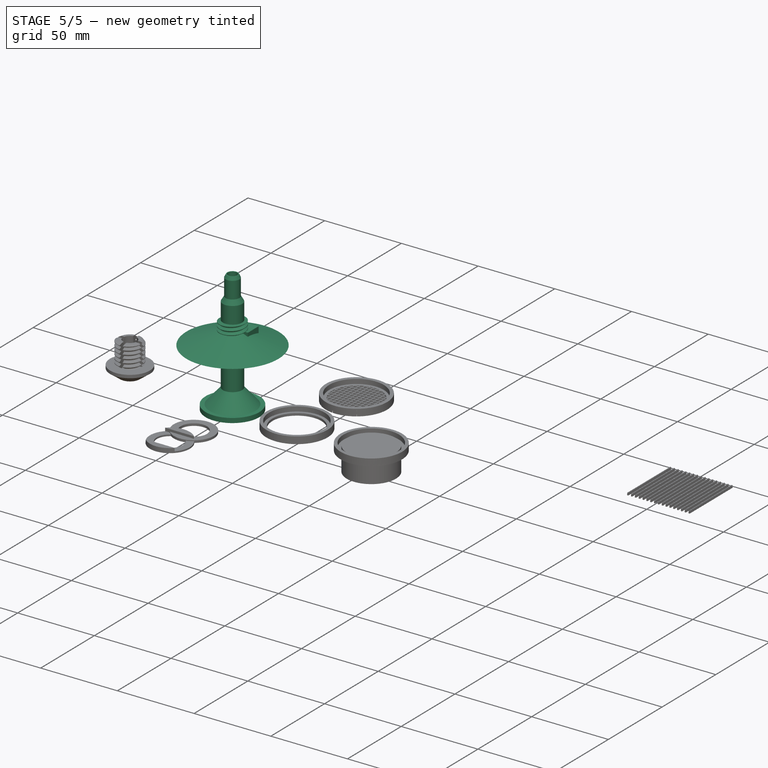
[diagram: stage 5 of 5 — iso view after this stage's code; geometry added in this stage tinted green]
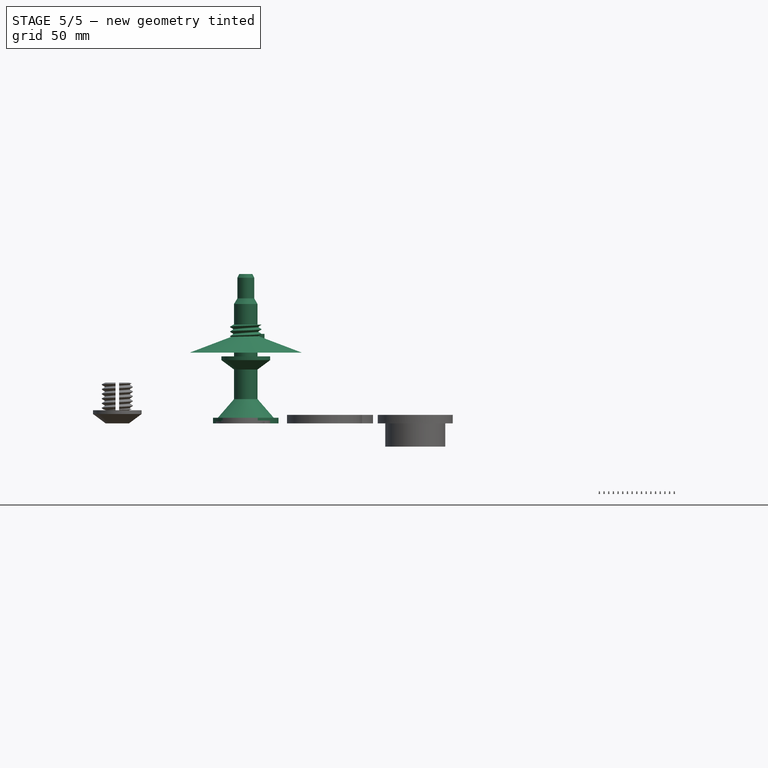
[diagram: stage 5 of 5 — front view after this stage's code; geometry added in this stage tinted green]
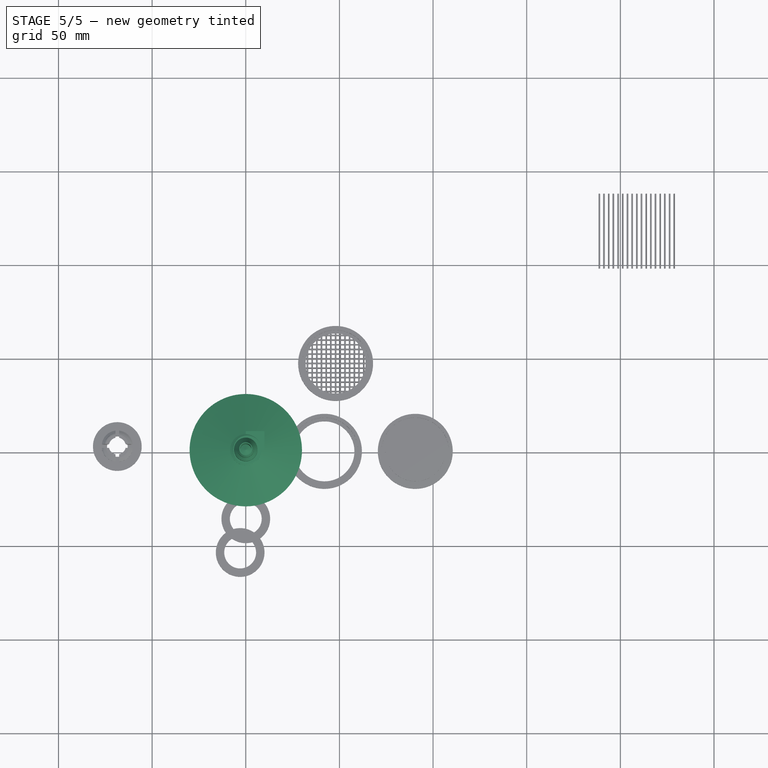
[diagram: stage 5 of 5 — top view after this stage's code; geometry added in this stage tinted green]
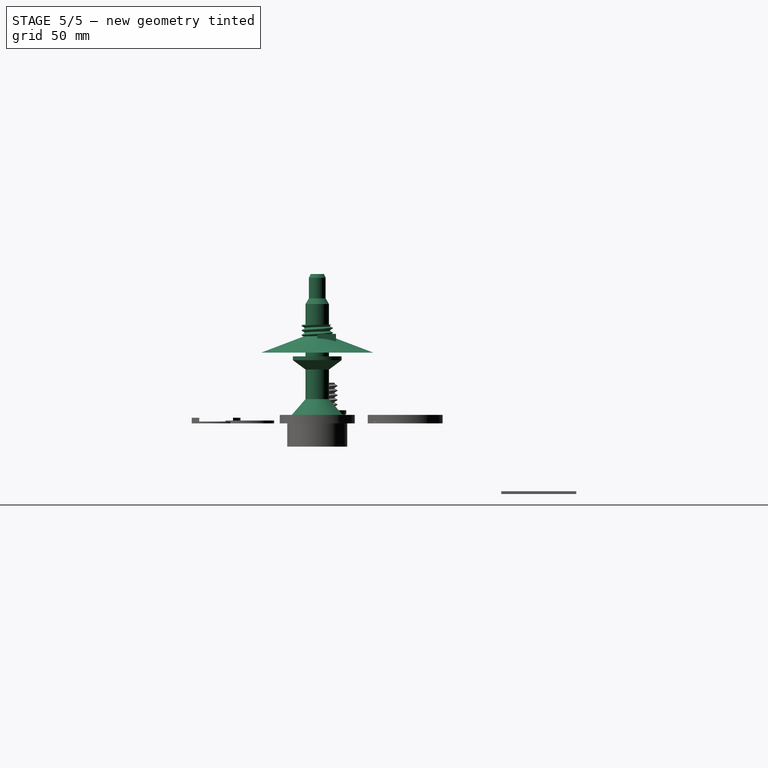
[diagram: stage 5 of 5 — right view after this stage's code; geometry added in this stage tinted green]
FEATURE [Part::Part2DObjectPython] Rectangle  # Draft 2D object (typed FeaturePython)
  ChamferSize = 0
  Columns = 1
  FilletRadius = 0
  Height = 21.2273
  Length = 31.898
  MakeFace = true
  Placement = pos=(0,15.6478,-3.78267) rot=(0.57735,-0.57735,-0.57735;2.0944rad)
  Rows = 1
FEATURE [Part::Cone] Cone
  Angle = 360
  AttacherType = Attacher::AttachEngine3D
  Height = 11.41
  Radius1 = 30
  Radius2 = 0
FEATURE [Part::Box] Box  label="Cube"
  AttacherType = Attacher::AttachEngine3D
  Height = 10
  Length = 10
  Width = 10
FEATURE [Part::Part2DObjectPython] Wire  # Draft 2D object (typed FeaturePython)
  ChamferSize = 0
  Closed = false
  End = (0,0,19.9965)
  FilletRadius = 0
  Length = 19.9965
  MakeFace = true
  Placement = pos=(0,0,0) rot=(0.57735,-0.57735,-0.57735;2.0944rad)
  Points = (3) [(0,0,0),(0,0,0),(0,19.9965,0)]
  Start = (0,0,0)
  Subdivisions = 0
  Support = -> [Rectangle]
FEATURE [Sketcher::SketchObject] Sketch
  MapMode = 5
  Support = -> [XY_Plane]
  sketch-geometry (2):
    g0: Circle CenterX=0 CenterY=0 CenterZ=0 NormalX=0 NormalY=0 NormalZ=1 AngleXU=0 Radius=8.33
    g1: Circle CenterX=0 CenterY=0 CenterZ=0 NormalX=0 NormalY=0 NormalZ=1 AngleXU=0 Radius=3
  constraints (3):
    c: Radius(g0) = 8.33
    c: Coincident(g1,g0)
    c: Radius(g1) = 3
FEATURE [PartDesign::Pad] Pad
  Length = 15
  Length2 = 100
  Profile = -> Sketch
  Type = 0
FEATURE [Sketcher::SketchObject] Sketch001
  MapMode = 5
  Placement = pos=(0,0,0) rot=(1,0,0;1.5708rad)
  Support = -> [XZ_Plane]
  sketch-geometry (4):
    g0: LineSegment StartX=8.60665 StartY=-2.5005 StartZ=0 EndX=8.60665 EndY=-0.00172703 EndZ=0
    g1: LineSegment StartX=8.60665 StartY=-0.00172703 StartZ=0 EndX=6.98265 EndY=-0.939344 EndZ=0
    g2: LineSegment StartX=6.98266 StartY=-1.56288 StartZ=0 EndX=8.60665 EndY=-2.5005 EndZ=0
    g3: ArcOfCircle CenterX=7.16265 CenterY=-1.25111 CenterZ=0 NormalX=0 NormalY=0 NormalZ=1 AngleXU=0 Radius=0.36 StartAngle=2.0944 EndAngle=4.18879
  constraints (9):
    c: Coincident(g0,g1)
    c: Coincident(g2,g0)
    c: Vertical(g0)
    c: Angle(g1,g0) = 1.0472
    c: Angle(g0,g2) = 1.0472
    c: Tangent(g1,g3) = -1.5708
    c: Tangent(g2,g3) = -1.5708
    c: Radius(g3) = 0.36
    c: DistanceX(g1,g0) = 1.624
FEATURE [PartDesign::ShapeBinder] CopyHelix
  Placement = pos=(0,0,-2.5) rot=(0,0,1;0rad)
  TraceSupport = false
FEATURE [PartDesign::SubtractivePipe] SubtractivePipe
  AuxilleryCurvelinear = true
  AuxillerySpineTangent = false
  BaseFeature = -> Pad
  Binormal = (0,0,0)
  Mode = 2
  Profile = -> Sketch001
  Spine = -> CopyHelix
  SpineTangent = false
  Transformation = 0
  Transition = 0
FEATURE [Part::Feature] Cut003001  label="FormattedScrew001"
  shape: bbox 17.51 x 17.8 x 16.53 mm, 32 faces (baked)
FEATURE [Part::Part2DObjectPython] Circle  # Draft 2D object (typed FeaturePython)
  FirstAngle = 0
  LastAngle = 0
  MakeFace = true
  Placement = pos=(7.1e-15,2e-15,-2) rot=(0,0,1;0rad)
  Radius = 19.3631
  Support = -> [Fusion010011]
FEATURE [Part::Part2DObjectPython] Circle001  # Draft 2D object (typed FeaturePython)
  FirstAngle = 0
  LastAngle = 0
  MakeFace = true
  Placement = pos=(7.1e-15,2e-15,-2) rot=(0,0,1;0rad)
  Radius = 6.27
FEATURE [Part::Extrusion] Extrusion
  Base = -> Circle001
  Dir = (0,0,67.8095)
  DirMode = 0
  FaceMakerClass = Part::FaceMakerBullseye
  LengthFwd = 0
  LengthRev = 0
  Solid = true
  Symmetric = false
FEATURE [Part::Cut] Cut003002
  Base = -> Extrusion001
  Tool = -> Extrusion
FEATURE [Part::Cut] Cut003003
  Base = -> Fusion010011
  Tool = -> Cut003002
FEATURE [Part::MultiFuse] Fusion
  Shapes = -> [Cut003003,Cut003001]
FEATURE [Part::Cone] Cone002
  Angle = 360
  AttacherType = Attacher::AttachEngine3D
  Height = 3
  Placement = pos=(0,5e-15,-24.7731) rot=(0,0,1;0rad)
  Radius1 = 5
  Radius2 = 2
FEATURE [Part::Part2DObjectPython] Line005  # Draft 2D object (typed FeaturePython)
  ChamferSize = 0
  Closed = false
  End = (-3,8.8e-15,-24.7731)
  FilletRadius = 0
  Length = 6
  MakeFace = true
  Placement = pos=(3,0,-24.7731) rot=(0.57735,0.57735,0.57735;2.0944rad)
  Points = (2) [(0,0,0),(8.84e-15,0,-6)]
  Start = (3,0,-24.7731)
  Subdivisions = 0
  Support = -> [Fusion]
FEATURE [Part::Part2DObjectPython] Line006  # Draft 2D object (typed FeaturePython)
  ChamferSize = 0
  Closed = false
  End = (-4.77,1e-15,-24.7731)
  FilletRadius = 0
  Length = 9.54
  MakeFace = true
  Placement = pos=(4.77,-1e-15,-24.7731) rot=(0.57735,0.57735,0.57735;2.0944rad)
  Points = (2) [(0,0,0),(2e-15,0,-9.54)]
  Start = (4.77,-1e-15,-24.7731)
  Subdivisions = 0
FEATURE [Part::Cut] Cut003004
  Base = -> Fusion
  Tool = -> Cone002
FEATURE [Part::Part2DObjectPython] Circle002  # Draft 2D object (typed FeaturePython)
  FirstAngle = 0
  LastAngle = 0
  MakeFace = true
  Placement = pos=(-1.1e-14,-1.3e-14,-37.7308) rot=(1,0,0;3.14159rad)
  Radius = 16
  Support = -> [Cut003004]
FEATURE [Part::Extrusion] Extrusion002
  Base = -> Circle002
  Dir = (0,0,3)
  DirMode = 0
  FaceMakerClass = Part::FaceMakerBullseye
  LengthFwd = 0
  LengthRev = 0
  Solid = true
  Symmetric = false
FEATURE [Part::Part2DObjectPython] Circle003  # Draft 2D object (typed FeaturePython)
  FirstAngle = 0
  LastAngle = 0
  MakeFace = true
  Placement = pos=(-1.4e-14,-1.2e-14,-37.7308) rot=(1,0,0;3.14159rad)
  Radius = 17.5
  Support = -> [Extrusion002]
FEATURE [Part::Extrusion] Extrusion003
  Base = -> Circle003
  Dir = (0,0,3)
  DirMode = 0
  FaceMakerClass = Part::FaceMakerBullseye
  LengthFwd = 0
  LengthRev = 0
  Solid = true
  Symmetric = false
FEATURE [Part::Cut] Cut003005
  Base = -> Extrusion003
  Tool = -> Extrusion002
FEATURE [Part::MultiFuse] Fusion010012
  Shapes = -> [Cut003004,Cut003005]
FEATURE [Part::Part2DObjectPython] Wire001  # Draft 2D object (typed FeaturePython)
  ChamferSize = 0
  Closed = true
  End = (16,-9.2e-15,-36)
  FilletRadius = 0
  Length = 4.0488
  MakeFace = true
  Placement = pos=(14.9,-4e-15,-34.7308) rot=(0,0,1;0rad)
  Points = (3) [(0,0,0),(1.1,-1.01305e-14,0),(1.1,-5.21646e-15,-1.26923)]
  Start = (14.9,-4e-15,-34.7308)
  Subdivisions = 0
FEATURE [Part::Part2DObjectPython] Line010  # Draft 2D object (typed FeaturePython)
  ChamferSize = 0
  Closed = false
  End = (-1.42e-14,-7.9e-15,60.6024)
  FilletRadius = 0
  Length = 95.3331
  MakeFace = true
  Placement = pos=(-1.4e-14,-8e-15,-34.7308) rot=(0.57735,0.57735,0.57735;2.0944rad)
  Points = (2) [(0,0,0),(0,95.3331,0)]
  Start = (-1.42e-14,-7.9e-15,-34.7308)
  Subdivisions = 0
  Support = -> [Fusion010012]
FEATURE [Part::Revolution] Revolve
  Angle = 360
  Axis = (0,0,1)
  AxisLink = -> Line010 [Edge1]
  Base = (-1.42e-14,-7.9e-15,60.6024)
  FaceMakerClass = Part::FaceMakerBullseye
  Solid = false
  Source = -> Wire001
  Symmetric = false
FEATURE [Part::MultiFuse] Fusion010013
  Shapes = -> [Fusion010012,Revolve]
FEATURE [Part::MultiFuse] Fusion010013002
  Shapes = -> [Cut001004009,Cut001004010]
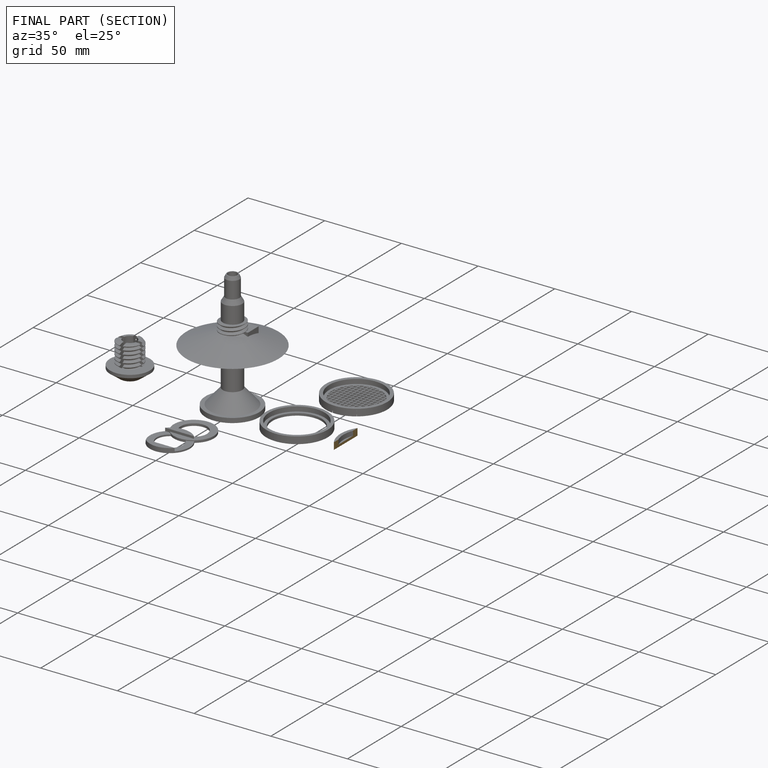
[diagram: finished part — half-section view (interior)]
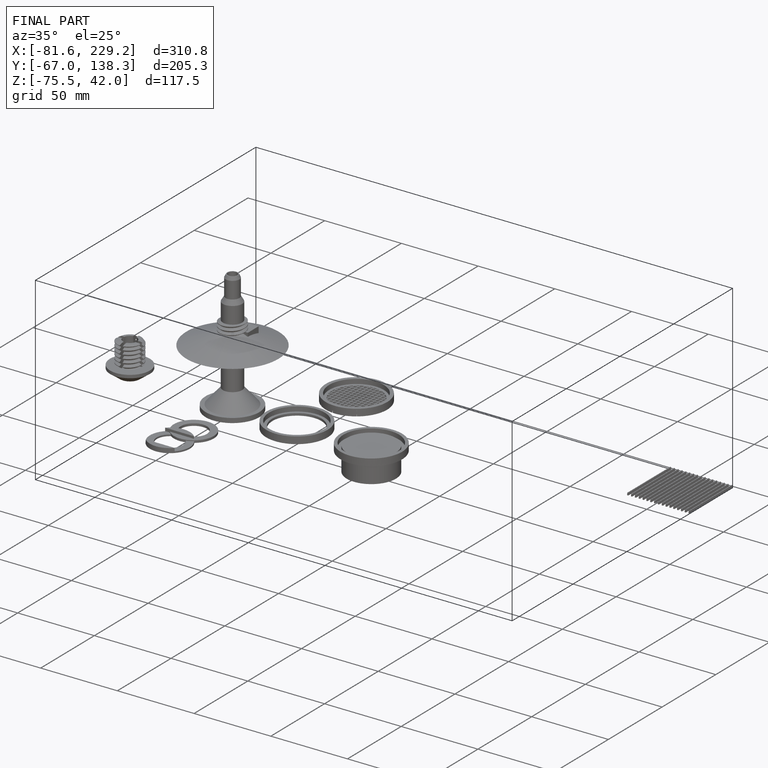
[diagram: finished part — iso view with bounding-box wireframe]
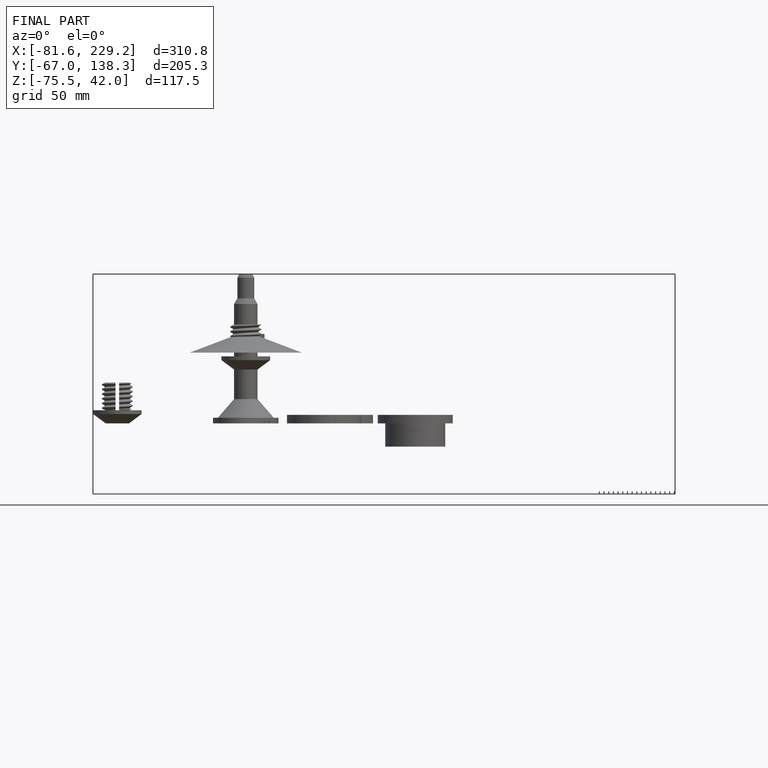
[diagram: finished part — front view with bounding-box wireframe]
